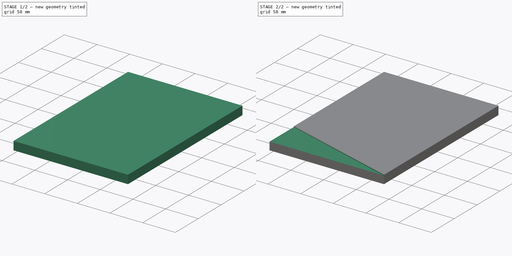
[diagram: build sequence overview — one tinted view per stage of 2, left to right]
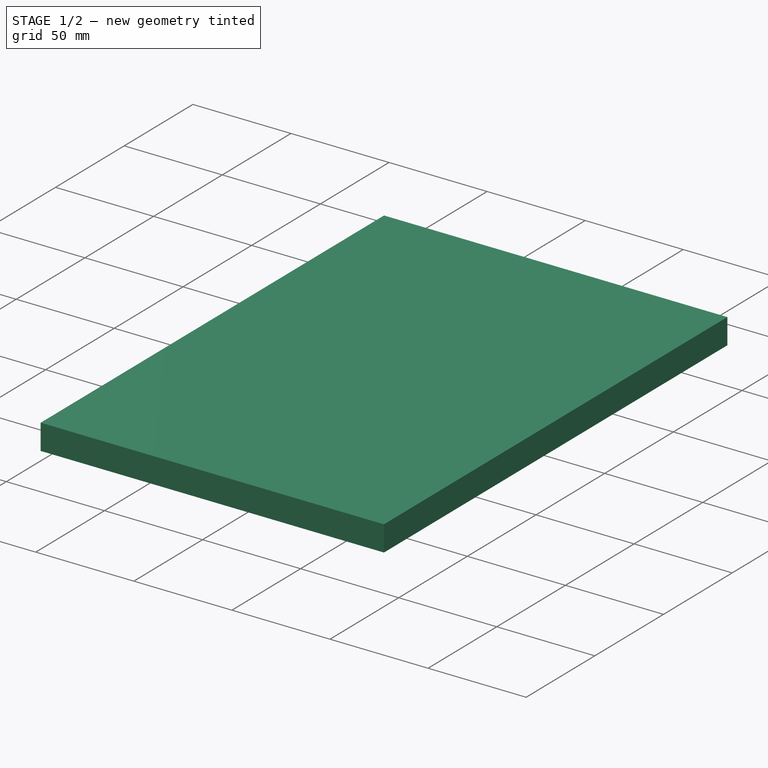
[diagram: stage 1 of 2 — iso view after this stage's code; geometry added in this stage tinted green]
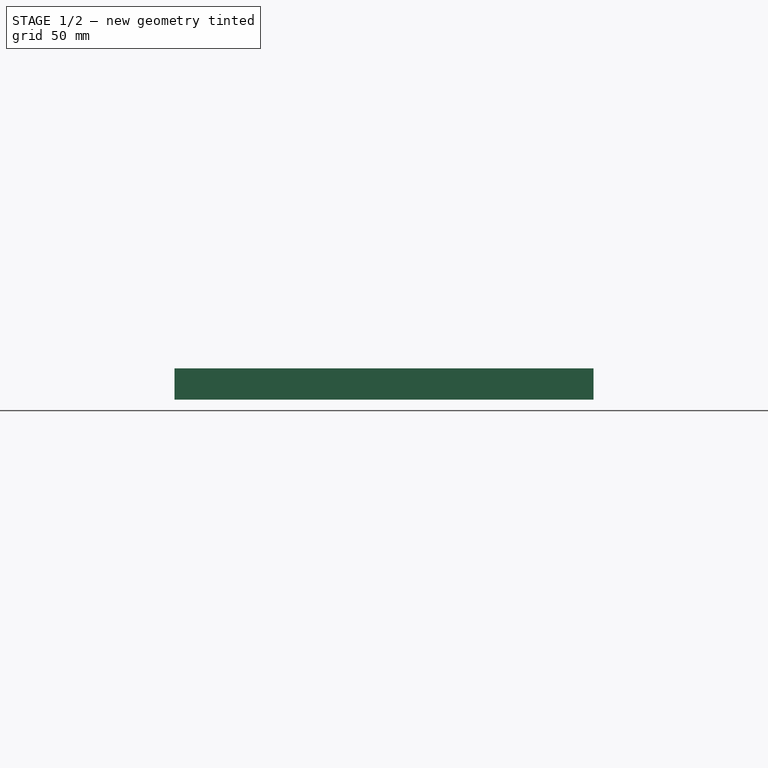
[diagram: stage 1 of 2 — front view after this stage's code; geometry added in this stage tinted green]
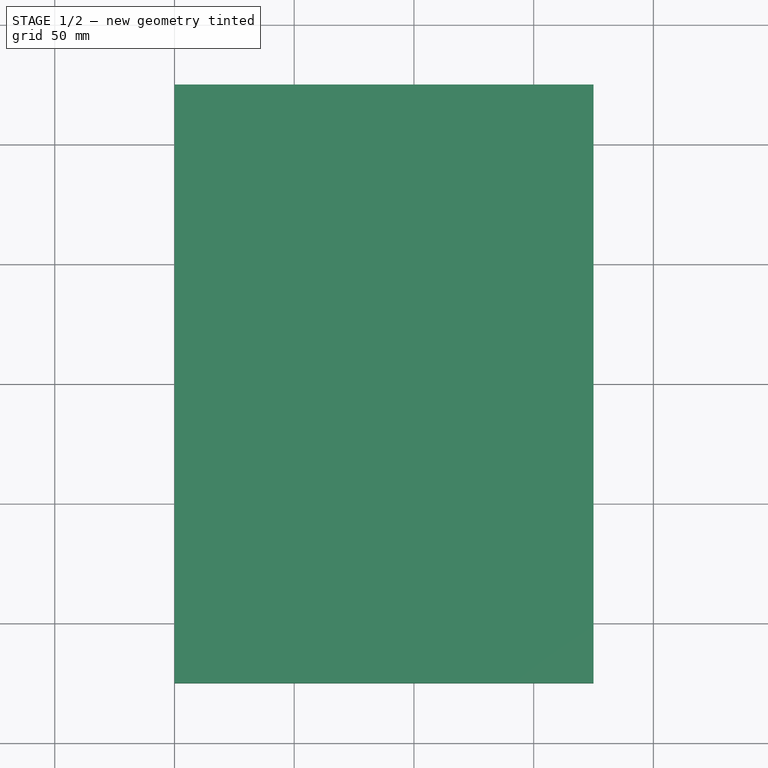
[diagram: stage 1 of 2 — top view after this stage's code; geometry added in this stage tinted green]
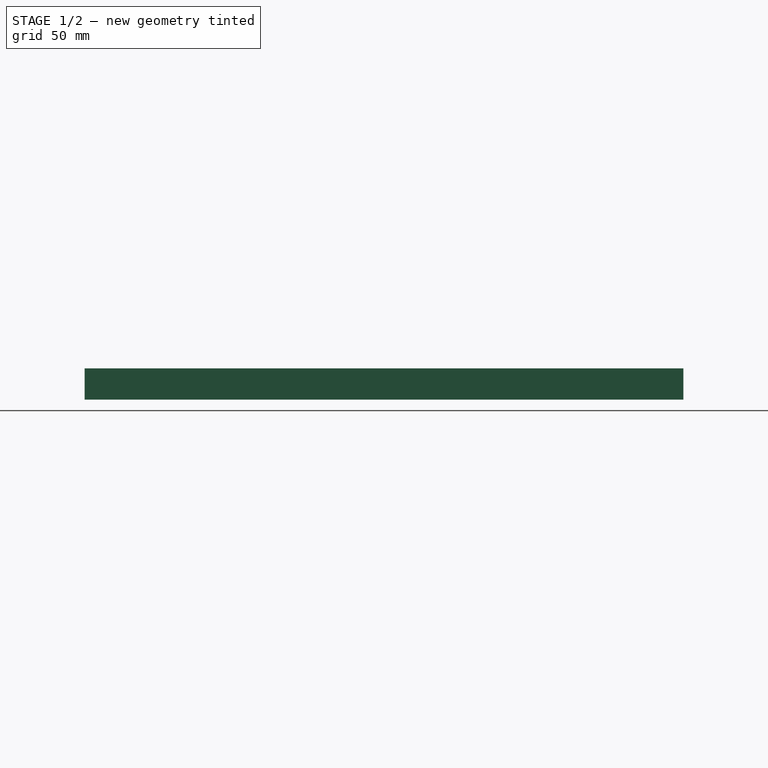
[diagram: stage 1 of 2 — right view after this stage's code; geometry added in this stage tinted green]
FCSTD DOCUMENT  (FreeCAD 0.18R14555 (Git shallow))
Label: 8010_Frame_Base
License: All rights reserved
LicenseURL: http://en.wikipedia.org/wiki/All_rights_reserved
objects: Sketcher::SketchObject×3, PartDesign::Pad×1, Spreadsheet::Sheet×1, PartDesign::Pocket×1, PartDesign::Body×1, App::Part×1
note: 8 computed .brp shape members not serialized (recipe doc carries the construction recipe); baked Part::Feature solids carry a one-line shape summary decoded from their .brp

FEATURE [Sketcher::SketchObject] Sketch
  MapMode = 5
  Support = -> [XY_Plane001]
  expr: Constraints[11] = Spreadsheet.Width
  expr: Constraints[10] = Spreadsheet.Depth
  sketch-geometry (7):
    g0: LineSegment StartX=0 StartY=0 StartZ=0 EndX=0 EndY=125 EndZ=0
    g1: LineSegment StartX=0 StartY=125 StartZ=0 EndX=175 EndY=125 EndZ=0
    g2: LineSegment StartX=175 StartY=125 StartZ=0 EndX=175 EndY=-125 EndZ=0
    g3: LineSegment StartX=175 StartY=-125 StartZ=0 EndX=0 EndY=-125 EndZ=0
    g4: LineSegment StartX=0 StartY=-125 StartZ=0 EndX=0 EndY=0 EndZ=0
    g5: LineSegment [constr] StartX=0 StartY=-125 StartZ=0 EndX=87.5 EndY=0 EndZ=0
    g6: LineSegment [constr] StartX=87.5 StartY=0 StartZ=0 EndX=175 EndY=125 EndZ=0
  constraints (19):
    c: Vertical(g0)
    c: Coincident(g1,g0)
    c: Horizontal(g1)
    c: Vertical(g2)
    c: Horizontal(g3)
    c: Vertical(g4)
    c: Coincident(g4,g0)
    c: Coincident(g4,g3)
    c: Coincident(g3,g2)
    c: Coincident(g0,g-1)
    c: Distance(g1) = 175
    c: DistanceY(g2,g2) = 250
    c: Coincident(g1,g2)
    c: Coincident(g5,g3)
    c: Coincident(g6,g1)
    c: Equal(g6,g5)
    c: Coincident(g5,g6)
    c: PointOnObject(g5,g-1)
    c: Parallel(g5,g6)
FEATURE [PartDesign::Pad] Pad
  Length = 13
  Length2 = 100
  Profile = -> Sketch
  Type = 0
  expr: Length = Spreadsheet.T
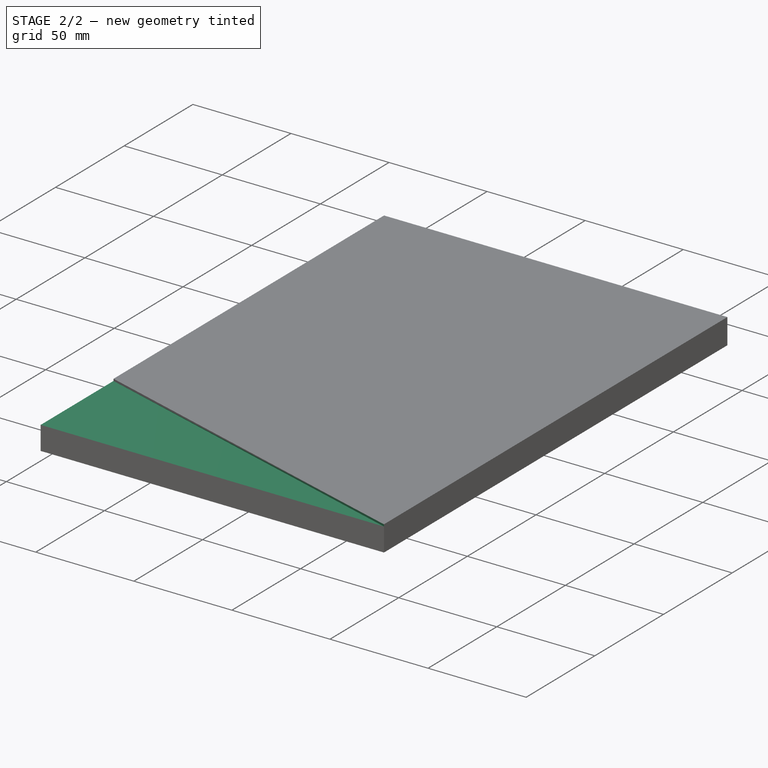
[diagram: stage 2 of 2 — iso view after this stage's code; geometry added in this stage tinted green]
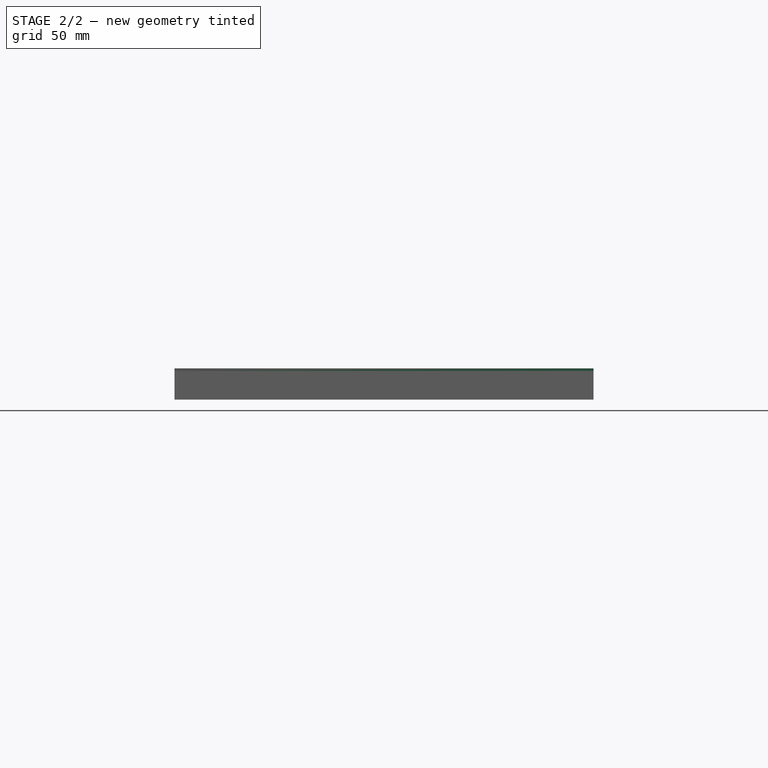
[diagram: stage 2 of 2 — front view after this stage's code; geometry added in this stage tinted green]
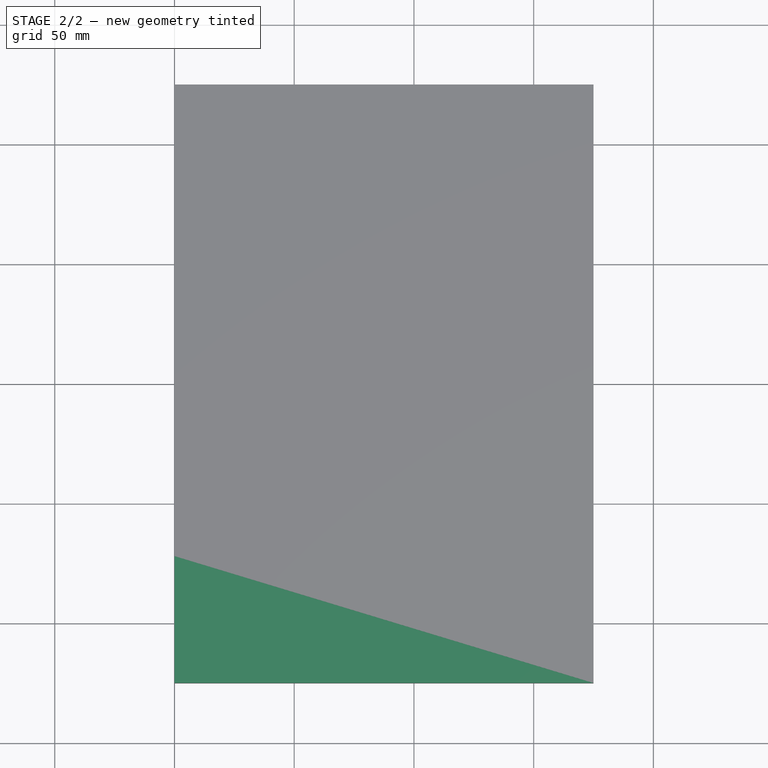
[diagram: stage 2 of 2 — top view after this stage's code; geometry added in this stage tinted green]
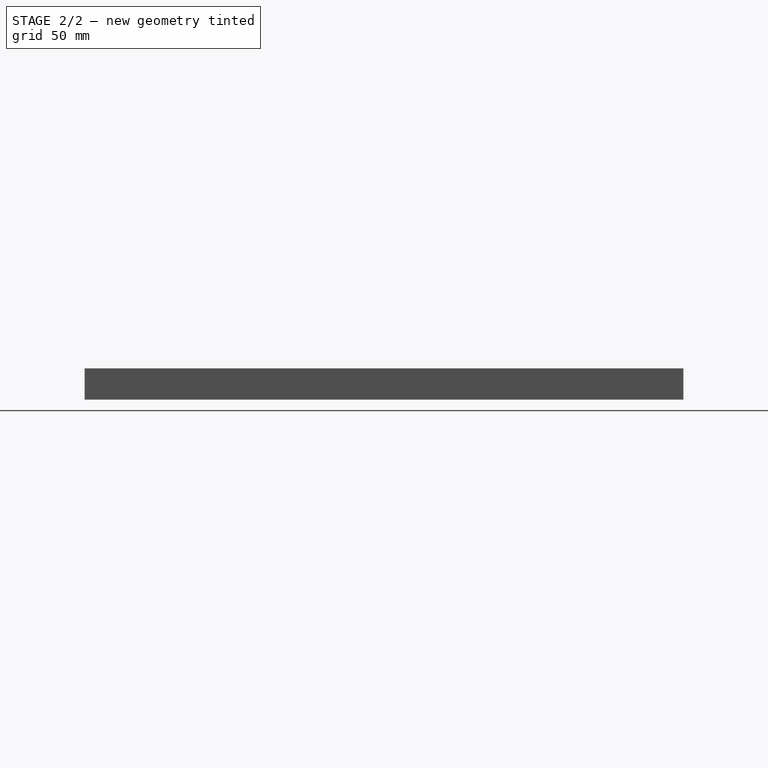
[diagram: stage 2 of 2 — right view after this stage's code; geometry added in this stage tinted green]
FEATURE [Spreadsheet::Sheet] Spreadsheet
  cells = B2=FRAME BASE; B3=Z=; C3(T)=13; D3=.T; E3=Thichness; B4=Y=; C4(Width)=250; D4=.W; E4=Width; B5=X=; C5(Depth)=175; D5=.D; E5=Depth
FEATURE [Sketcher::SketchObject] Sketch001
  MapMode = 5
  Placement = pos=(0,0,13) rot=(0,0,1;0rad)
  Support = -> [Pad]
  sketch-geometry (3):
    g0: LineSegment StartX=16.778 StartY=-210.88 StartZ=0 EndX=17.2836 EndY=-236.816 EndZ=0
    g1: LineSegment StartX=17.2836 StartY=-236.816 StartZ=0 EndX=84.9762 EndY=-236.816 EndZ=0
    g2: LineSegment StartX=84.9762 StartY=-236.816 StartZ=0 EndX=16.778 EndY=-210.88 EndZ=0
  constraints (4):
    c: Coincident(g0,g1)
    c: Horizontal(g1)
    c: Coincident(g1,g2)
    c: Coincident(g2,g0)
FEATURE [Sketcher::SketchObject] Sketch002
  ExternalGeometry = -> [Pad]
  MapMode = 5
  Placement = pos=(0,0,13) rot=(0,0,1;0rad)
  Support = -> [Pad]
  sketch-geometry (3):
    g0: LineSegment StartX=0 StartY=-125 StartZ=0 EndX=0 EndY=-71.9732 EndZ=0
    g1: LineSegment StartX=0 StartY=-71.9732 StartZ=0 EndX=175 EndY=-125 EndZ=0
    g2: LineSegment StartX=175 StartY=-125 StartZ=0 EndX=0 EndY=-125 EndZ=0
  constraints (6):
    c: Coincident(g0,g-3)
    c: PointOnObject(g0,g-2)
    c: Coincident(g1,g0)
    c: Coincident(g1,g-3)
    c: Coincident(g2,g1)
    c: Coincident(g2,g0)
FEATURE [PartDesign::Pocket] Pocket
  BaseFeature = -> Pad
  Length = 1
  Length2 = 100
  Profile = -> Sketch002
  Type = 0
FEATURE [PartDesign::Body] PadBody
  Group = -> [Sketch,Pad,Sketch002,Pocket]
  Origin = -> Origin001
  Tip = -> Pocket
FEATURE [App::Part] Part
  Group = -> [PadBody]
  License = CC BY 3.0
  LicenseURL = http://creativecommons.org/licenses/by/3.0/
  Origin = -> Origin
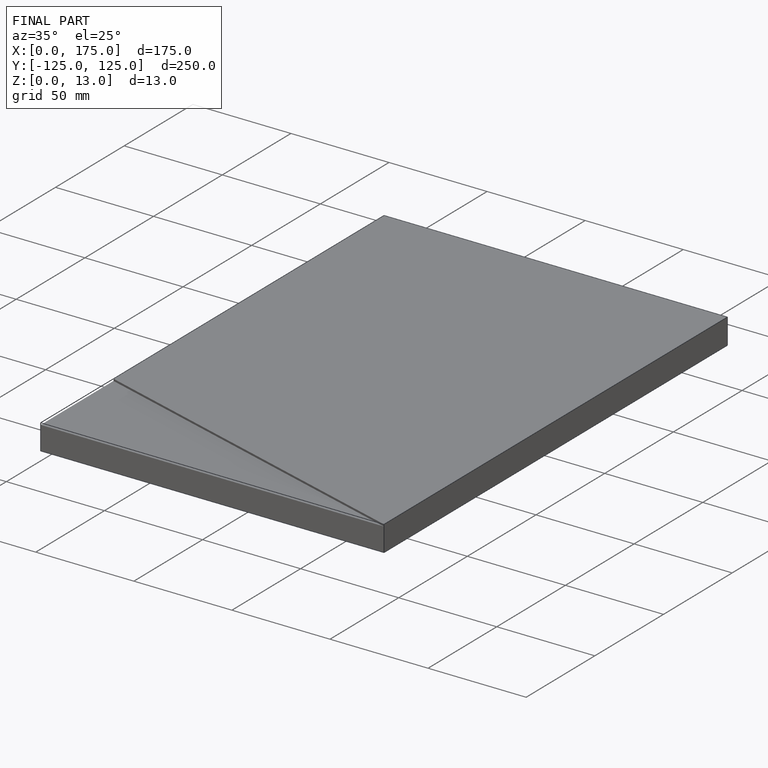
[diagram: finished part — iso view with bounding-box wireframe]
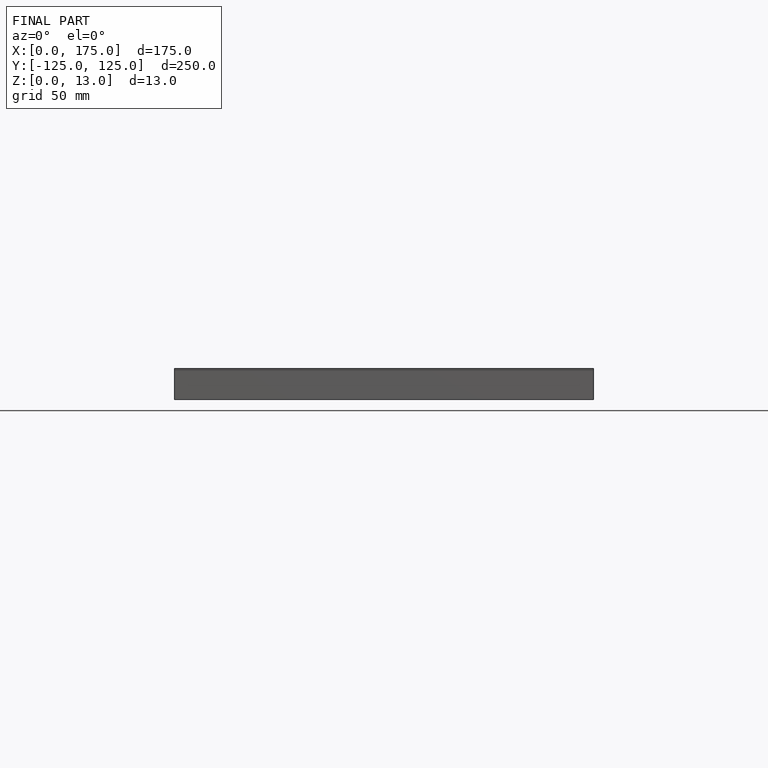
[diagram: finished part — front view with bounding-box wireframe]
